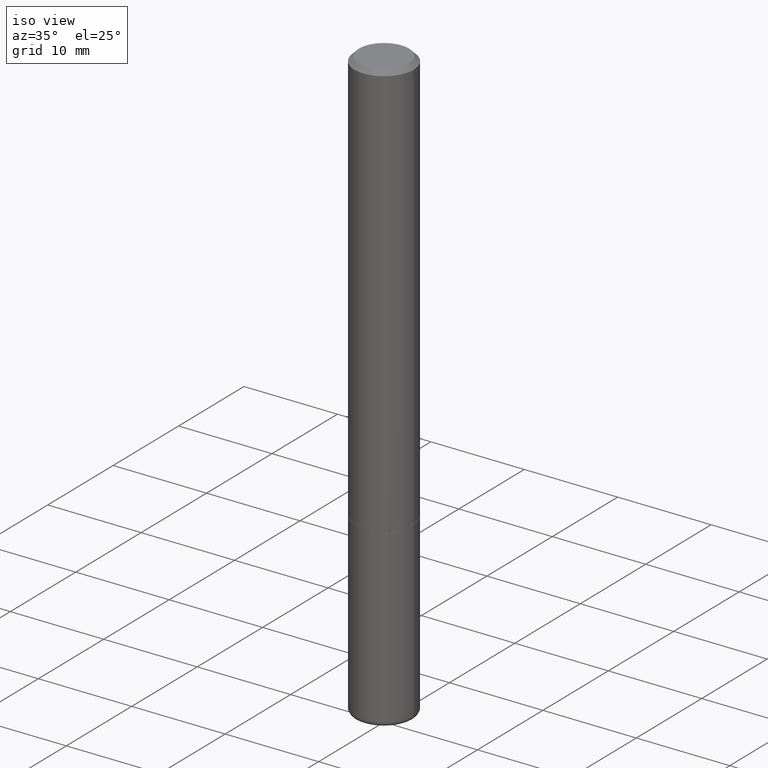
[diagram: clean part render]
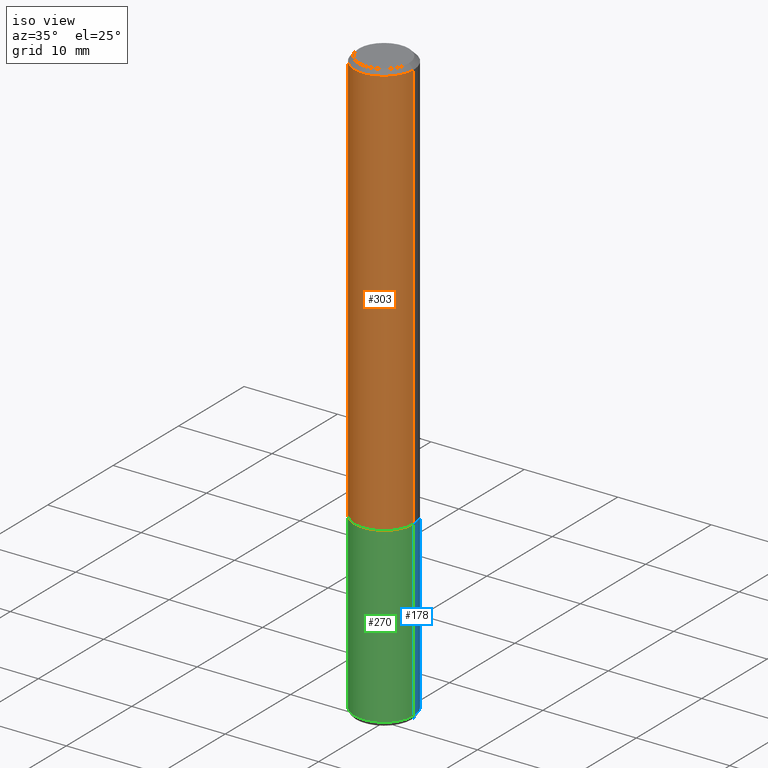
[diagram: same view with three faces highlighted in distinct colors, each labeled with its STEP entity id]
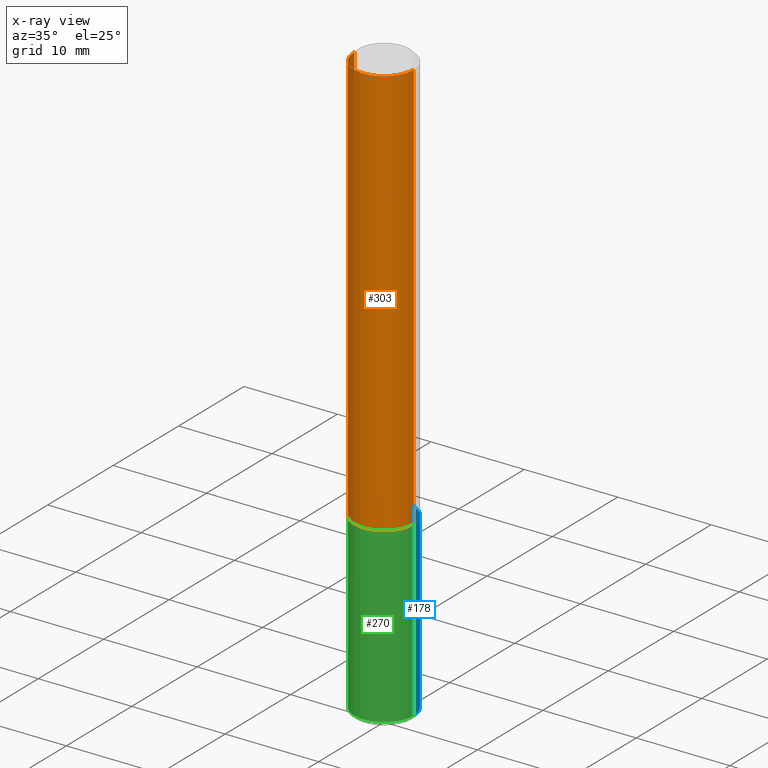
[diagram: x-ray of the same camera — body ghosted, the three highlighted faces saturated]
A machine part, iso view with three faces highlighted in distinct colors.
The next image is the same camera in x-ray (body ghosted, the three faces saturated) — at least one of them is partly hidden behind the body in this view.
Their STEP definitions:

[orange] entity #303 — the highlighted cylindrical surface (edge-blend (fillet) strip) has radius 3.175 mm, axis along (-0, 0, 1).
#2 = DIRECTION ( 'NONE',  ( 1.000000000000000000, -6.982962677686266711E-15, 0.000000000000000000 ) ) ;
#25 = CARTESIAN_POINT ( 'NONE',  ( -0.1249999999999999029, 8.881784197001245421E-16, -6.148668862818627323E-30 ) ) ;
#32 = DIRECTION ( 'NONE',  ( -2.445468806185136597E-29, 3.491481338843145583E-15, 1.000000000000000000 ) ) ;
#36 = DIRECTION ( 'NONE',  ( -2.445468806185136597E-29, 3.491481338843145583E-15, 1.000000000000000000 ) ) ;
#47 = VERTEX_POINT ( 'NONE', #113 ) ;
#50 = VERTEX_POINT ( 'NONE', #236 ) ;
#68 = DIRECTION ( 'NONE',  ( 1.000000000000000000, -6.982962677686266711E-15, 4.876176775795935793E-29 ) ) ;
#72 = ORIENTED_EDGE ( 'NONE', *, *, #257, .F. ) ;
#100 = VERTEX_POINT ( 'NONE', #319 ) ;
#101 = CARTESIAN_POINT ( 'NONE',  ( 0.000000000000000000, 0.000000000000000000, 0.000000000000000000 ) ) ;
#113 = CARTESIAN_POINT ( 'NONE',  ( -0.1249999999999997641, 8.030407079339185615E-16, -0.02000000000000003858 ) ) ;
#115 = CARTESIAN_POINT ( 'NONE',  ( 0.1250000000000000278, -6.979471196347445792E-15, -1.749000000000000110 ) ) ;
#132 = CIRCLE ( 'NONE', #346, 0.1249999999999997641 ) ;
#163 = LINE ( 'NONE', #202, #439 ) ;
#177 = CARTESIAN_POINT ( 'NONE',  ( 4.277124942017804562E-29, -6.106600861636661664E-15, -1.749000000000000110 ) ) ;
#179 = VECTOR ( 'NONE', #191, 39.37007874015748143 ) ;
#191 = DIRECTION ( 'NONE',  ( -2.445468806185136877E-29, 3.491481338843145188E-15, 1.000000000000000000 ) ) ;
#202 = CARTESIAN_POINT ( 'NONE',  ( 0.1249999999999999029, -8.728703347107826486E-16, 6.095220969744914837E-30 ) ) ;
#236 = CARTESIAN_POINT ( 'NONE',  ( 0.1249999999999997641, -9.273918764983027713E-16, -0.02000000000000003858 ) ) ;
#250 = DIRECTION ( 'NONE',  ( 1.000000000000000000, -6.982962677686269077E-15, 0.000000000000000000 ) ) ;
#257 = EDGE_CURVE ( 'NONE', #47, #50, #132, .T. ) ;
#267 = AXIS2_PLACEMENT_3D ( 'NONE', #177, #310, #250 ) ;
#284 = ORIENTED_EDGE ( 'NONE', *, *, #306, .T. ) ;
#290 = CIRCLE ( 'NONE', #267, 0.1250000000000000278 ) ;
#303 = ADVANCED_FACE ( 'NONE', ( #339 ), #379, .T. ) ;
#306 = EDGE_CURVE ( 'NONE', #100, #347, #290, .T. ) ;
#310 = DIRECTION ( 'NONE',  ( -2.445468806185136597E-29, 3.491481338843145583E-15, 1.000000000000000000 ) ) ;
#319 = CARTESIAN_POINT ( 'NONE',  ( -0.1250000000000000278, -2.200036824506634488E-15, -1.749000000000000110 ) ) ;
#321 = ORIENTED_EDGE ( 'NONE', *, *, #366, .T. ) ;
#335 = DIRECTION ( 'NONE',  ( -2.445468806185136877E-29, 3.491481338843145188E-15, 1.000000000000000000 ) ) ;
#339 = FACE_OUTER_BOUND ( 'NONE', #357, .T. ) ;
#346 = AXIS2_PLACEMENT_3D ( 'NONE', #405, #36, #2 ) ;
#347 = VERTEX_POINT ( 'NONE', #115 ) ;
#357 = EDGE_LOOP ( 'NONE', ( #433, #284, #321, #72 ) ) ;
#366 = EDGE_CURVE ( 'NONE', #347, #50, #163, .T. ) ;
#379 = CYLINDRICAL_SURFACE ( 'NONE', #414, 0.1249999999999999029 ) ;
#393 = EDGE_CURVE ( 'NONE', #100, #47, #396, .T. ) ;
#396 = LINE ( 'NONE', #25, #179 ) ;
#405 = CARTESIAN_POINT ( 'NONE',  ( 4.890937612370282792E-31, -6.982962677686303935E-17, -0.02000000000000003858 ) ) ;
#414 = AXIS2_PLACEMENT_3D ( 'NONE', #101, #32, #68 ) ;
#433 = ORIENTED_EDGE ( 'NONE', *, *, #393, .F. ) ;
#439 = VECTOR ( 'NONE', #335, 39.37007874015748143 ) ;

[blue] entity #178 — the highlighted cylindrical surface (edge-blend (fillet) strip) has radius 3.175 mm, axis along (-0, 0, 1).
#9 = CIRCLE ( 'NONE', #126, 0.1250000000000002776 ) ;
#14 = DIRECTION ( 'NONE',  ( 1.000000000000000000, -6.982962677686262766E-15, 0.000000000000000000 ) ) ;
#59 = EDGE_CURVE ( 'NONE', #249, #264, #429, .T. ) ;
#75 = VERTEX_POINT ( 'NONE', #317 ) ;
#77 = CARTESIAN_POINT ( 'NONE',  ( -0.1250000000000001388, 8.881784197001262184E-16, -6.148668862818638533E-30 ) ) ;
#85 = CARTESIAN_POINT ( 'NONE',  ( 0.1250000000000001388, -8.728703347107843249E-16, 6.095220969744926748E-30 ) ) ;
#90 = DIRECTION ( 'NONE',  ( -2.445468806185136877E-29, 3.491481338843145188E-15, 1.000000000000000000 ) ) ;
#104 = ORIENTED_EDGE ( 'NONE', *, *, #391, .T. ) ;
#116 = VECTOR ( 'NONE', #369, 39.37007874015748143 ) ;
#120 = ORIENTED_EDGE ( 'NONE', *, *, #137, .F. ) ;
#126 = AXIS2_PLACEMENT_3D ( 'NONE', #296, #237, #432 ) ;
#137 = EDGE_CURVE ( 'NONE', #75, #249, #156, .T. ) ;
#143 = EDGE_CURVE ( 'NONE', #75, #312, #9, .T. ) ;
#148 = EDGE_LOOP ( 'NONE', ( #392, #104, #216, #120 ) ) ;
#156 = LINE ( 'NONE', #85, #376 ) ;
#178 = ADVANCED_FACE ( 'NONE', ( #434 ), #242, .T. ) ;
#216 = ORIENTED_EDGE ( 'NONE', *, *, #59, .F. ) ;
#217 = AXIS2_PLACEMENT_3D ( 'NONE', #441, #268, #402 ) ;
#231 = CARTESIAN_POINT ( 'NONE',  ( 4.279570410823989044E-29, -6.110092342975505460E-15, -1.750000000000000222 ) ) ;
#237 = DIRECTION ( 'NONE',  ( -2.445468806185136597E-29, 3.491481338843145583E-15, 1.000000000000000000 ) ) ;
#239 = LINE ( 'NONE', #77, #116 ) ;
#242 = CYLINDRICAL_SURFACE ( 'NONE', #217, 0.1250000000000001388 ) ;
#245 = AXIS2_PLACEMENT_3D ( 'NONE', #231, #325, #14 ) ;
#248 = CARTESIAN_POINT ( 'NONE',  ( -0.1250000000000000000, -6.496352461491424661E-15, -1.750000000000000222 ) ) ;
#249 = VERTEX_POINT ( 'NONE', #272 ) ;
#264 = VERTEX_POINT ( 'NONE', #248 ) ;
#268 = DIRECTION ( 'NONE',  ( -2.445468806185136597E-29, 3.491481338843145583E-15, 1.000000000000000000 ) ) ;
#272 = CARTESIAN_POINT ( 'NONE',  ( 0.1250000000000000000, -6.982962677686288010E-15, -1.750000000000000222 ) ) ;
#296 = CARTESIAN_POINT ( 'NONE',  ( 6.064829667939290224E-29, -8.658969419407599059E-15, -2.480027409304907948 ) ) ;
#312 = VERTEX_POINT ( 'NONE', #442 ) ;
#317 = CARTESIAN_POINT ( 'NONE',  ( 0.1250000000000002776, -9.531839754118383976E-15, -2.480027409304907948 ) ) ;
#325 = DIRECTION ( 'NONE',  ( -2.445468806185136597E-29, 3.491481338843145583E-15, 1.000000000000000000 ) ) ;
#369 = DIRECTION ( 'NONE',  ( -2.445468806185136877E-29, 3.491481338843145188E-15, 1.000000000000000000 ) ) ;
#376 = VECTOR ( 'NONE', #90, 39.37007874015748143 ) ;
#391 = EDGE_CURVE ( 'NONE', #312, #264, #239, .T. ) ;
#392 = ORIENTED_EDGE ( 'NONE', *, *, #143, .T. ) ;
#402 = DIRECTION ( 'NONE',  ( 1.000000000000000000, -6.982962677686266711E-15, 4.876176775795935793E-29 ) ) ;
#429 = CIRCLE ( 'NONE', #245, 0.1250000000000000000 ) ;
#432 = DIRECTION ( 'NONE',  ( 1.000000000000000000, -6.982962677686270655E-15, 0.000000000000000000 ) ) ;
#434 = FACE_OUTER_BOUND ( 'NONE', #148, .T. ) ;
#441 = CARTESIAN_POINT ( 'NONE',  ( 0.000000000000000000, 0.000000000000000000, 0.000000000000000000 ) ) ;
#442 = CARTESIAN_POINT ( 'NONE',  ( -0.1250000000000002776, -6.496352461491423083E-15, -2.480027409304907948 ) ) ;

[green] entity #270 — the highlighted cylindrical surface (edge-blend (fillet) strip) has radius 3.175 mm, axis along (-0, 0, 1).
#1 = CARTESIAN_POINT ( 'NONE',  ( 0.000000000000000000, 0.000000000000000000, 0.000000000000000000 ) ) ;
#7 = ORIENTED_EDGE ( 'NONE', *, *, #137, .T. ) ;
#17 = ORIENTED_EDGE ( 'NONE', *, *, #332, .F. ) ;
#18 = DIRECTION ( 'NONE',  ( 1.000000000000000000, -6.982962677686262766E-15, 0.000000000000000000 ) ) ;
#34 = AXIS2_PLACEMENT_3D ( 'NONE', #1, #412, #273 ) ;
#38 = EDGE_LOOP ( 'NONE', ( #194, #184, #7, #17 ) ) ;
#75 = VERTEX_POINT ( 'NONE', #317 ) ;
#77 = CARTESIAN_POINT ( 'NONE',  ( -0.1250000000000001388, 8.881784197001262184E-16, -6.148668862818638533E-30 ) ) ;
#85 = CARTESIAN_POINT ( 'NONE',  ( 0.1250000000000001388, -8.728703347107843249E-16, 6.095220969744926748E-30 ) ) ;
#88 = DIRECTION ( 'NONE',  ( 1.000000000000000000, -6.982962677686270655E-15, 0.000000000000000000 ) ) ;
#90 = DIRECTION ( 'NONE',  ( -2.445468806185136877E-29, 3.491481338843145188E-15, 1.000000000000000000 ) ) ;
#95 = AXIS2_PLACEMENT_3D ( 'NONE', #196, #440, #18 ) ;
#112 = CARTESIAN_POINT ( 'NONE',  ( 6.064829667939290224E-29, -8.658969419407599059E-15, -2.480027409304907948 ) ) ;
#116 = VECTOR ( 'NONE', #369, 39.37007874015748143 ) ;
#122 = DIRECTION ( 'NONE',  ( -2.445468806185136597E-29, 3.491481338843145583E-15, 1.000000000000000000 ) ) ;
#130 = FACE_OUTER_BOUND ( 'NONE', #38, .T. ) ;
#137 = EDGE_CURVE ( 'NONE', #75, #249, #156, .T. ) ;
#151 = CIRCLE ( 'NONE', #95, 0.1250000000000000000 ) ;
#156 = LINE ( 'NONE', #85, #376 ) ;
#180 = CYLINDRICAL_SURFACE ( 'NONE', #34, 0.1250000000000001388 ) ;
#184 = ORIENTED_EDGE ( 'NONE', *, *, #384, .T. ) ;
#194 = ORIENTED_EDGE ( 'NONE', *, *, #391, .F. ) ;
#196 = CARTESIAN_POINT ( 'NONE',  ( 4.279570410823989044E-29, -6.110092342975505460E-15, -1.750000000000000222 ) ) ;
#222 = AXIS2_PLACEMENT_3D ( 'NONE', #112, #122, #88 ) ;
#239 = LINE ( 'NONE', #77, #116 ) ;
#248 = CARTESIAN_POINT ( 'NONE',  ( -0.1250000000000000000, -6.496352461491424661E-15, -1.750000000000000222 ) ) ;
#249 = VERTEX_POINT ( 'NONE', #272 ) ;
#264 = VERTEX_POINT ( 'NONE', #248 ) ;
#270 = ADVANCED_FACE ( 'NONE', ( #130 ), #180, .T. ) ;
#272 = CARTESIAN_POINT ( 'NONE',  ( 0.1250000000000000000, -6.982962677686288010E-15, -1.750000000000000222 ) ) ;
#273 = DIRECTION ( 'NONE',  ( 1.000000000000000000, -6.982962677686266711E-15, 4.876176775795935793E-29 ) ) ;
#312 = VERTEX_POINT ( 'NONE', #442 ) ;
#317 = CARTESIAN_POINT ( 'NONE',  ( 0.1250000000000002776, -9.531839754118383976E-15, -2.480027409304907948 ) ) ;
#332 = EDGE_CURVE ( 'NONE', #264, #249, #151, .T. ) ;
#369 = DIRECTION ( 'NONE',  ( -2.445468806185136877E-29, 3.491481338843145188E-15, 1.000000000000000000 ) ) ;
#376 = VECTOR ( 'NONE', #90, 39.37007874015748143 ) ;
#384 = EDGE_CURVE ( 'NONE', #312, #75, #416, .T. ) ;
#391 = EDGE_CURVE ( 'NONE', #312, #264, #239, .T. ) ;
#412 = DIRECTION ( 'NONE',  ( -2.445468806185136597E-29, 3.491481338843145583E-15, 1.000000000000000000 ) ) ;
#416 = CIRCLE ( 'NONE', #222, 0.1250000000000002776 ) ;
#440 = DIRECTION ( 'NONE',  ( -2.445468806185136597E-29, 3.491481338843145583E-15, 1.000000000000000000 ) ) ;
#442 = CARTESIAN_POINT ( 'NONE',  ( -0.1250000000000002776, -6.496352461491423083E-15, -2.480027409304907948 ) ) ;